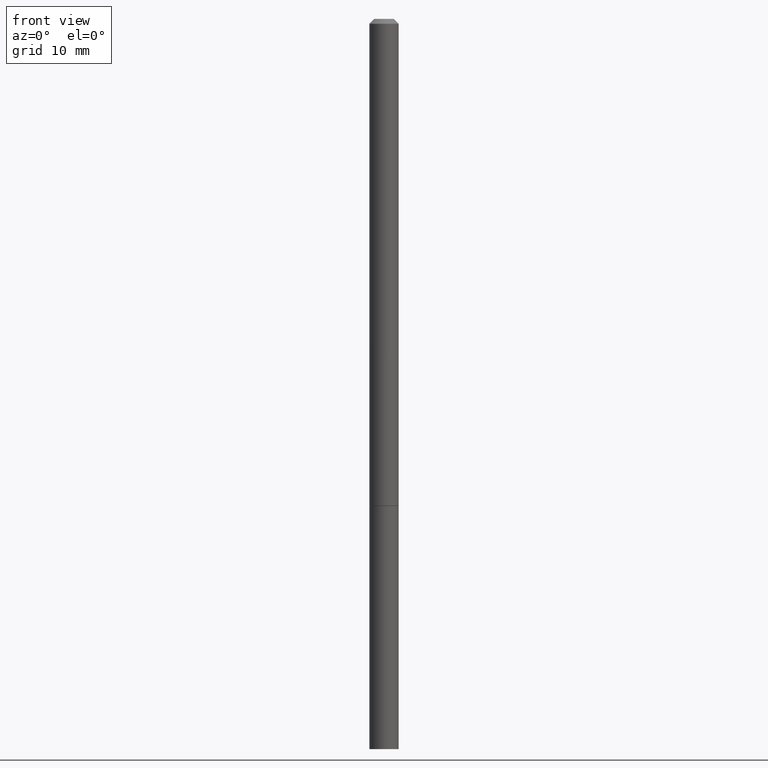
[diagram: clean part render]
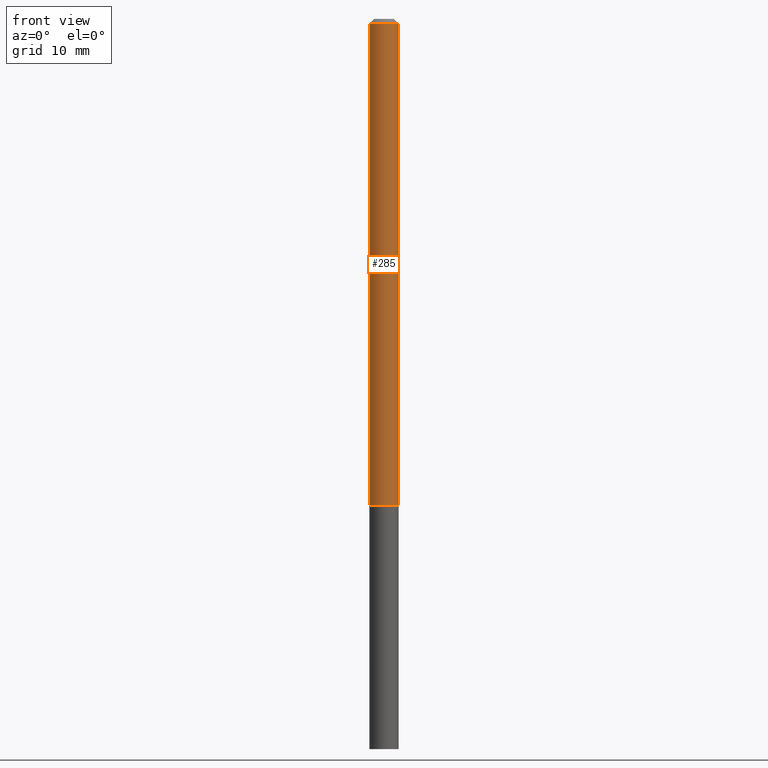
[diagram: same view with one face highlighted and labeled with its STEP entity id]
A machine part, front view. The second image highlights one B-rep face of the part: STEP entity #285.
In plain terms, the highlighted cylindrical surface (edge-blend (fillet) strip) has radius 1.4999 mm, axis along (-0, 0, 1).
Its self-contained STEP definition (entity closure, byte-faithful):
#7 = AXIS2_PLACEMENT_3D ( 'NONE', #167, #113, #84 ) ;
#26 = LINE ( 'NONE', #110, #56 ) ;
#45 = CARTESIAN_POINT ( 'NONE',  ( 0.05904999999999994975, -7.281833480291261254E-15, -1.967499999999999805 ) ) ;
#53 = DIRECTION ( 'NONE',  ( 1.000000000000000000, -6.982962677686261977E-15, 0.000000000000000000 ) ) ;
#55 = EDGE_LOOP ( 'NONE', ( #69, #104, #324, #346 ) ) ;
#56 = VECTOR ( 'NONE', #327, 39.37007874015748143 ) ;
#68 = DIRECTION ( 'NONE',  ( -2.445468806185136877E-29, 3.491481338843145188E-15, 1.000000000000000000 ) ) ;
#69 = ORIENTED_EDGE ( 'NONE', *, *, #308, .F. ) ;
#84 = DIRECTION ( 'NONE',  ( 1.000000000000000000, -6.982962677686265922E-15, 0.000000000000000000 ) ) ;
#87 = VERTEX_POINT ( 'NONE', #157 ) ;
#98 = CYLINDRICAL_SURFACE ( 'NONE', #252, 0.05904999999999984567 ) ;
#104 = ORIENTED_EDGE ( 'NONE', *, *, #166, .T. ) ;
#105 = CARTESIAN_POINT ( 'NONE',  ( 0.05904999999999974158, -4.749420335452702929E-16, -0.02000000000000007674 ) ) ;
#110 = CARTESIAN_POINT ( 'NONE',  ( 0.05904999999999984567, -4.123439461173729480E-16, 2.879382386107492513E-30 ) ) ;
#113 = DIRECTION ( 'NONE',  ( -2.445468806185136597E-29, 3.491481338843145583E-15, 1.000000000000000000 ) ) ;
#129 = VECTOR ( 'NONE', #68, 39.37007874015748143 ) ;
#138 = VERTEX_POINT ( 'NONE', #45 ) ;
#143 = EDGE_CURVE ( 'NONE', #293, #186, #329, .T. ) ;
#157 = CARTESIAN_POINT ( 'NONE',  ( -0.05904999999999994975, -3.050084095009030195E-15, -1.967499999999999805 ) ) ;
#164 = DIRECTION ( 'NONE',  ( -2.445468806185136597E-29, 3.491481338843145583E-15, 1.000000000000000000 ) ) ;
#166 = EDGE_CURVE ( 'NONE', #87, #138, #209, .T. ) ;
#167 = CARTESIAN_POINT ( 'NONE',  ( 4.890937612370292426E-31, -6.982962677686317493E-17, -0.02000000000000007674 ) ) ;
#177 = EDGE_CURVE ( 'NONE', #138, #186, #26, .T. ) ;
#186 = VERTEX_POINT ( 'NONE', #105 ) ;
#206 = AXIS2_PLACEMENT_3D ( 'NONE', #268, #164, #53 ) ;
#209 = CIRCLE ( 'NONE', #206, 0.05904999999999994975 ) ;
#236 = LINE ( 'NONE', #353, #129 ) ;
#252 = AXIS2_PLACEMENT_3D ( 'NONE', #347, #318, #264 ) ;
#264 = DIRECTION ( 'NONE',  ( 1.000000000000000000, -6.982962677686265922E-15, 4.876176775795935793E-29 ) ) ;
#268 = CARTESIAN_POINT ( 'NONE',  ( 4.811459876169255671E-29, -6.869489534173887122E-15, -1.967499999999999805 ) ) ;
#285 = ADVANCED_FACE ( 'NONE', ( #350 ), #98, .T. ) ;
#287 = CARTESIAN_POINT ( 'NONE',  ( -0.05904999999999974158, 3.425143193405090089E-16, -0.02000000000000007674 ) ) ;
#293 = VERTEX_POINT ( 'NONE', #287 ) ;
#308 = EDGE_CURVE ( 'NONE', #87, #293, #236, .T. ) ;
#318 = DIRECTION ( 'NONE',  ( -2.445468806185136597E-29, 3.491481338843145583E-15, 1.000000000000000000 ) ) ;
#324 = ORIENTED_EDGE ( 'NONE', *, *, #177, .T. ) ;
#327 = DIRECTION ( 'NONE',  ( -2.445468806185136877E-29, 3.491481338843145188E-15, 1.000000000000000000 ) ) ;
#329 = CIRCLE ( 'NONE', #7, 0.05904999999999974158 ) ;
#346 = ORIENTED_EDGE ( 'NONE', *, *, #143, .F. ) ;
#347 = CARTESIAN_POINT ( 'NONE',  ( 0.000000000000000000, 0.000000000000000000, 0.000000000000000000 ) ) ;
#350 = FACE_OUTER_BOUND ( 'NONE', #55, .T. ) ;
#353 = CARTESIAN_POINT ( 'NONE',  ( -0.05904999999999984567, 4.195754854663380632E-16, -2.904631170795514185E-30 ) ) ;